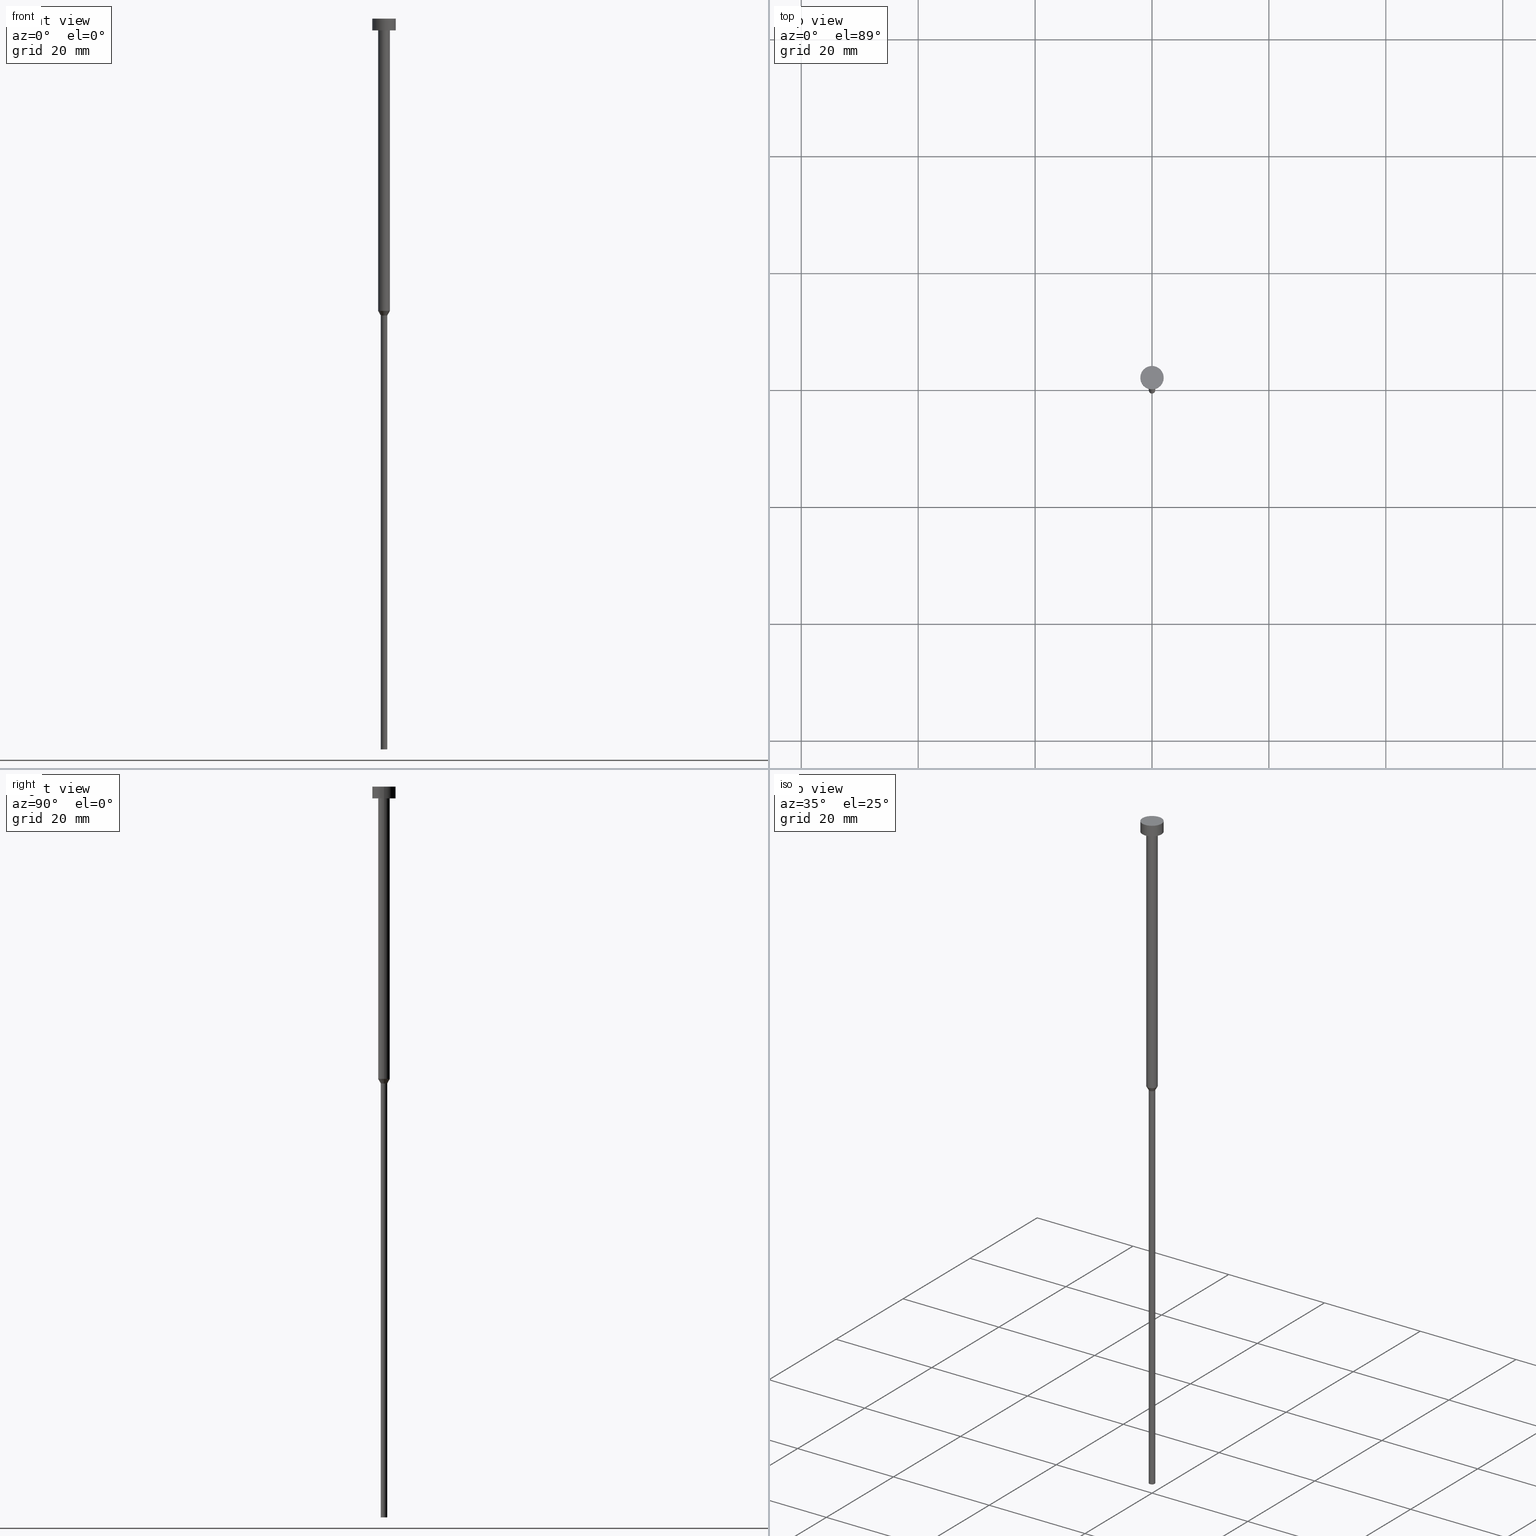
[diagram: canonical four-view strip — front | top / right | iso, engineering-drawing reading convention]
A machine part, canonical four-view strip (front | top / right | iso — engineering-drawing reading convention). The complete STEP part file that produces these views, byte-faithful:
ISO-10303-21;
HEADER;
FILE_DESCRIPTION (( 'STEP AP203' ),
    '1' );
FILE_NAME ('0143.STEP',
    '2023-02-13T11:52:59',
    ( '' ),
    ( '' ),
    'SwSTEP 2.0',
    'SolidWorks 2019',
    '' );
FILE_SCHEMA (( 'CONFIG_CONTROL_DESIGN' ));
ENDSEC;

DATA;
#1 = CC_DESIGN_PERSON_AND_ORGANIZATION_ASSIGNMENT ( #39, #232, ( #33 ) ) ;
#2 = ORIENTED_EDGE ( 'NONE', *, *, #259, .F. ) ;
#3 = LINE ( 'NONE', #186, #301 ) ;
#4 = FACE_OUTER_BOUND ( 'NONE', #128, .T. ) ;
#5 = ORIENTED_EDGE ( 'NONE', *, *, #282, .F. ) ;
#6 = DIRECTION ( 'NONE',  ( 1.000000000000000000, 0.000000000000000000, 0.000000000000000000 ) ) ;
#7 = AXIS2_PLACEMENT_3D ( 'NONE', #40, #133, #331 ) ;
#8 =( LENGTH_UNIT ( ) NAMED_UNIT ( * ) SI_UNIT ( .MILLI., .METRE. ) );
#9 = EDGE_CURVE ( 'NONE', #268, #194, #107, .T. ) ;
#10 = ORIENTED_EDGE ( 'NONE', *, *, #316, .T. ) ;
#11 = ORIENTED_EDGE ( 'NONE', *, *, #285, .F. ) ;
#12 = AXIS2_PLACEMENT_3D ( 'NONE', #298, #146, #276 ) ;
#13 = CARTESIAN_POINT ( 'NONE',  ( 0.000000000000000000, 0.000000000000000000, -125.0000000000000000 ) ) ;
#14 = DIRECTION ( 'NONE',  ( 1.000000000000000000, 0.000000000000000000, 0.000000000000000000 ) ) ;
#15 = DIRECTION ( 'NONE',  ( 1.000000000000000000, 0.000000000000000000, 0.000000000000000000 ) ) ;
#16 = ORIENTED_EDGE ( 'NONE', *, *, #126, .T. ) ;
#17 = DATE_AND_TIME ( #204, #152 ) ;
#18 = DIRECTION ( 'NONE',  ( -0.000000000000000000, -0.000000000000000000, 1.000000000000000000 ) ) ;
#19 = APPROVAL_STATUS ( 'not_yet_approved' ) ;
#20 = CYLINDRICAL_SURFACE ( 'NONE', #151, 1.000000000000003331 ) ;
#21 = PERSON_AND_ORGANIZATION_ROLE ( 'classification_officer' ) ;
#22 = DIRECTION ( 'NONE',  ( 1.000000000000000000, 0.000000000000000000, 0.000000000000000000 ) ) ;
#23 = VERTEX_POINT ( 'NONE', #314 ) ;
#24 = CARTESIAN_POINT ( 'NONE',  ( -2.000000000000000000, 2.449293598294706414E-16, 0.000000000000000000 ) ) ;
#25 = DIRECTION ( 'NONE',  ( 1.000000000000000000, 0.000000000000000000, 0.000000000000000000 ) ) ;
#26 = VERTEX_POINT ( 'NONE', #200 ) ;
#27 = CARTESIAN_POINT ( 'NONE',  ( 0.000000000000000000, 0.000000000000000000, 0.000000000000000000 ) ) ;
#28 = DIRECTION ( 'NONE',  ( -0.000000000000000000, -0.000000000000000000, 1.000000000000000000 ) ) ;
#29 = CONICAL_SURFACE ( 'NONE', #265, 1.000000000000003109, 0.5235987755983020353 ) ;
#30 = DIRECTION ( 'NONE',  ( -0.000000000000000000, -0.000000000000000000, 1.000000000000000000 ) ) ;
#31 = CIRCLE ( 'NONE', #171, 0.5500000000000000444 ) ;
#32 = DIRECTION ( 'NONE',  ( -0.000000000000000000, -0.000000000000000000, 1.000000000000000000 ) ) ;
#33 = PRODUCT_DEFINITION_FORMATION_WITH_SPECIFIED_SOURCE ( 'LIBOVOLN�', '', #131, .NOT_KNOWN. ) ;
#34 = ORIENTED_EDGE ( 'NONE', *, *, #335, .T. ) ;
#35 = CARTESIAN_POINT ( 'NONE',  ( 1.000000000000003109, 0.000000000000000000, -50.00000000000000000 ) ) ;
#36 = ORIENTED_EDGE ( 'NONE', *, *, #326, .F. ) ;
#37 = DIRECTION ( 'NONE',  ( -0.000000000000000000, -0.000000000000000000, 1.000000000000000000 ) ) ;
#38 = DATE_TIME_ROLE ( 'classification_date' ) ;
#39 = PERSON_AND_ORGANIZATION ( #61, #98 ) ;
#40 = CARTESIAN_POINT ( 'NONE',  ( 0.000000000000000000, 0.000000000000000000, -2.449293598294705921E-16 ) ) ;
#41 = CALENDAR_DATE ( 2023, 13, 2 ) ;
#42 = ADVANCED_FACE ( 'NONE', ( #160, #106 ), #46, .T. ) ;
#43 = AXIS2_PLACEMENT_3D ( 'NONE', #279, #32, #89 ) ;
#44 = COORDINATED_UNIVERSAL_TIME_OFFSET ( 1, 0, .AHEAD. ) ;
#45 = CARTESIAN_POINT ( 'NONE',  ( -0.5499999999999999334, 6.735557395310441284E-17, -125.0000000000000000 ) ) ;
#46 = PLANE ( 'NONE',  #70 ) ;
#47 = SECURITY_CLASSIFICATION_LEVEL ( 'unclassified' ) ;
#48 = ORIENTED_EDGE ( 'NONE', *, *, #9, .F. ) ;
#49 = DIRECTION ( 'NONE',  ( -1.000000000000000000, 0.000000000000000000, -0.000000000000000000 ) ) ;
#50 = CARTESIAN_POINT ( 'NONE',  ( 2.000000000000000000, 0.000000000000000000, 0.000000000000000000 ) ) ;
#51 = CARTESIAN_POINT ( 'NONE',  ( 0.5499999999999999334, 0.000000000000000000, 0.000000000000000000 ) ) ;
#52 = CARTESIAN_POINT ( 'NONE',  ( 0.000000000000000000, 0.000000000000000000, -50.77942286340599765 ) ) ;
#53 = EDGE_CURVE ( 'NONE', #57, #23, #163, .T. ) ;
#54 = ADVANCED_FACE ( 'NONE', ( #4 ), #111, .T. ) ;
#55 = AXIS2_PLACEMENT_3D ( 'NONE', #27, #244, #218 ) ;
#56 = FACE_OUTER_BOUND ( 'NONE', #223, .T. ) ;
#57 = VERTEX_POINT ( 'NONE', #193 ) ;
#58 = DIRECTION ( 'NONE',  ( 1.000000000000000000, 0.000000000000000000, 0.000000000000000000 ) ) ;
#59 = LINE ( 'NONE', #35, #112 ) ;
#60 = CC_DESIGN_SECURITY_CLASSIFICATION ( #92, ( #33 ) ) ;
#61 = PERSON ( 'NEUR�EN�', 'NEUR�EN�', 'NEUR�EN�', ('NEUR�EN�'), ('NEUR�EN�'), ('NEUR�EN�') ) ;
#62 = FACE_OUTER_BOUND ( 'NONE', #337, .T. ) ;
#63 = ORIENTED_EDGE ( 'NONE', *, *, #201, .T. ) ;
#64 = PRODUCT_DEFINITION ( 'NEZN�M�', '', #33, #269 ) ;
#65 = ORIENTED_EDGE ( 'NONE', *, *, #137, .T. ) ;
#66 =( NAMED_UNIT ( * ) PLANE_ANGLE_UNIT ( ) SI_UNIT ( $, .RADIAN. ) );
#67 = AXIS2_PLACEMENT_3D ( 'NONE', #188, #327, #302 ) ;
#68 = DATE_AND_TIME ( #317, #296 ) ;
#69 = DIRECTION ( 'NONE',  ( 0.5000000000000027756, 0.000000000000000000, 0.8660254037844370423 ) ) ;
#70 = AXIS2_PLACEMENT_3D ( 'NONE', #105, #207, #321 ) ;
#71 = PRODUCT_DEFINITION_SHAPE ( 'NONE', 'NONE',  #64 ) ;
#72 = DIRECTION ( 'NONE',  ( -0.000000000000000000, -0.000000000000000000, 1.000000000000000000 ) ) ;
#73 = APPROVAL_PERSON_ORGANIZATION ( #175, #134, #183 ) ;
#74 = EDGE_LOOP ( 'NONE', ( #184, #109, #147, #5 ) ) ;
#75 = PERSON_AND_ORGANIZATION ( #61, #98 ) ;
#76 = ORIENTED_EDGE ( 'NONE', *, *, #282, .T. ) ;
#77 = EDGE_CURVE ( 'NONE', #23, #78, #280, .T. ) ;
#78 = VERTEX_POINT ( 'NONE', #281 ) ;
#79 = DIRECTION ( 'NONE',  ( 1.000000000000000000, 0.000000000000000000, 0.000000000000000000 ) ) ;
#80 = CIRCLE ( 'NONE', #12, 2.000000000000000000 ) ;
#81 = APPROVAL ( #19, 'NEUR�EN�' ) ;
#82 = CARTESIAN_POINT ( 'NONE',  ( 2.000000000000000000, 0.000000000000000000, -2.000000000000000444 ) ) ;
#83 = DIRECTION ( 'NONE',  ( -0.000000000000000000, -0.000000000000000000, 1.000000000000000000 ) ) ;
#84 = ORIENTED_EDGE ( 'NONE', *, *, #77, .F. ) ;
#85 = DIRECTION ( 'NONE',  ( -0.000000000000000000, -0.000000000000000000, 1.000000000000000000 ) ) ;
#86 = DIRECTION ( 'NONE',  ( 1.000000000000000000, 0.000000000000000000, 0.000000000000000000 ) ) ;
#87 = CC_DESIGN_PERSON_AND_ORGANIZATION_ASSIGNMENT ( #346, #21, ( #92 ) ) ;
#88 = ORIENTED_EDGE ( 'NONE', *, *, #235, .F. ) ;
#89 = DIRECTION ( 'NONE',  ( 1.000000000000000000, 0.000000000000000000, 0.000000000000000000 ) ) ;
#90 = DIRECTION ( 'NONE',  ( 1.000000000000000000, 0.000000000000000000, 0.000000000000000000 ) ) ;
#91 = ORIENTED_EDGE ( 'NONE', *, *, #300, .F. ) ;
#92 = SECURITY_CLASSIFICATION ( '', '', #47 ) ;
#93 = ORIENTED_EDGE ( 'NONE', *, *, #300, .T. ) ;
#94 = EDGE_LOOP ( 'NONE', ( #16, #65, #350, #248 ) ) ;
#95 = DIRECTION ( 'NONE',  ( -0.000000000000000000, -0.000000000000000000, 1.000000000000000000 ) ) ;
#96 = CC_DESIGN_DATE_AND_TIME_ASSIGNMENT ( #68, #233, ( #64 ) ) ;
#97 = ORIENTED_EDGE ( 'NONE', *, *, #266, .T. ) ;
#98 = ORGANIZATION ( 'NEUR�EN�', 'NEUR�EN�', '' ) ;
#99 = CARTESIAN_POINT ( 'NONE',  ( 0.000000000000000000, 0.000000000000000000, 0.000000000000000000 ) ) ;
#100 = PERSON_AND_ORGANIZATION ( #61, #98 ) ;
#101 = CYLINDRICAL_SURFACE ( 'NONE', #305, 2.000000000000000000 ) ;
#102 = EDGE_CURVE ( 'NONE', #333, #227, #59, .T. ) ;
#103 = PERSON_AND_ORGANIZATION ( #61, #98 ) ;
#104 = COORDINATED_UNIVERSAL_TIME_OFFSET ( 1, 0, .AHEAD. ) ;
#105 = CARTESIAN_POINT ( 'NONE',  ( 0.000000000000000000, -2.000000000000000000, -2.000000000000000444 ) ) ;
#106 = FACE_OUTER_BOUND ( 'NONE', #117, .T. ) ;
#107 = CIRCLE ( 'NONE', #271, 0.5499999999999999334 ) ;
#108 = CARTESIAN_POINT ( 'NONE',  ( 0.000000000000000000, 0.000000000000000000, 0.000000000000000000 ) ) ;
#109 = ORIENTED_EDGE ( 'NONE', *, *, #235, .T. ) ;
#110 = DIRECTION ( 'NONE',  ( -0.000000000000000000, -0.000000000000000000, 1.000000000000000000 ) ) ;
#111 = PLANE ( 'NONE',  #234 ) ;
#112 = VECTOR ( 'NONE', #69, 1000.000000000000000 ) ;
#113 = CARTESIAN_POINT ( 'NONE',  ( 0.000000000000000000, 0.000000000000000000, -50.00000000000000000 ) ) ;
#114 = ORIENTED_EDGE ( 'NONE', *, *, #126, .F. ) ;
#115 = CYLINDRICAL_SURFACE ( 'NONE', #55, 1.000000000000003331 ) ;
#116 = AXIS2_PLACEMENT_3D ( 'NONE', #297, #85, #25 ) ;
#117 = EDGE_LOOP ( 'NONE', ( #36, #123 ) ) ;
#118 = MANIFOLD_SOLID_BREP ( 'Rotovat1', #143 ) ;
#119 = PERSON_AND_ORGANIZATION_ROLE ( 'design_owner' ) ;
#120 = CARTESIAN_POINT ( 'NONE',  ( -1.000000000000003109, 1.224646799147356905E-16, -50.00000000000000000 ) ) ;
#121 =( NAMED_UNIT ( * ) SI_UNIT ( $, .STERADIAN. ) SOLID_ANGLE_UNIT ( ) );
#122 = APPLICATION_CONTEXT ( 'configuration controlled 3d designs of mechanical parts and assemblies' ) ;
#123 = ORIENTED_EDGE ( 'NONE', *, *, #320, .F. ) ;
#124 = ORIENTED_EDGE ( 'NONE', *, *, #53, .T. ) ;
#125 = CC_DESIGN_APPROVAL ( #179, ( #92 ) ) ;
#126 = EDGE_CURVE ( 'NONE', #333, #245, #31, .T. ) ;
#127 = DIRECTION ( 'NONE',  ( -0.000000000000000000, -0.000000000000000000, 1.000000000000000000 ) ) ;
#128 = EDGE_LOOP ( 'NONE', ( #63, #240 ) ) ;
#129 = DATE_AND_TIME ( #41, #231 ) ;
#130 = FACE_OUTER_BOUND ( 'NONE', #172, .T. ) ;
#131 = PRODUCT ( '0143', '0143', '', ( #173 ) ) ;
#132 = APPROVAL_PERSON_ORGANIZATION ( #286, #179, #158 ) ;
#133 = DIRECTION ( 'NONE',  ( -0.000000000000000000, -0.000000000000000000, 1.000000000000000000 ) ) ;
#134 = APPROVAL ( #343, 'NEUR�EN�' ) ;
#135 = ORIENTED_EDGE ( 'NONE', *, *, #137, .F. ) ;
#136 = UNCERTAINTY_MEASURE_WITH_UNIT (LENGTH_MEASURE( 1.000000000000000082E-05 ), #8, 'distance_accuracy_value', 'NONE');
#137 = EDGE_CURVE ( 'NONE', #245, #252, #225, .T. ) ;
#138 = AXIS2_PLACEMENT_3D ( 'NONE', #275, #141, #148 ) ;
#139 = PLANE ( 'NONE',  #257 ) ;
#140 = DIRECTION ( 'NONE',  ( -0.000000000000000000, -0.000000000000000000, 1.000000000000000000 ) ) ;
#141 = DIRECTION ( 'NONE',  ( -0.000000000000000000, -0.000000000000000000, 1.000000000000000000 ) ) ;
#142 = ORIENTED_EDGE ( 'NONE', *, *, #259, .T. ) ;
#143 = CLOSED_SHELL ( 'NONE', ( #177, #181, #195, #324, #162, #217, #287, #307, #42, #145, #54 ) ) ;
#144 = FACE_OUTER_BOUND ( 'NONE', #352, .T. ) ;
#145 = ADVANCED_FACE ( 'NONE', ( #341 ), #310, .T. ) ;
#146 = DIRECTION ( 'NONE',  ( -0.000000000000000000, -0.000000000000000000, 1.000000000000000000 ) ) ;
#147 = ORIENTED_EDGE ( 'NONE', *, *, #154, .F. ) ;
#148 = DIRECTION ( 'NONE',  ( 1.000000000000000000, 0.000000000000000000, 0.000000000000000000 ) ) ;
#149 = CARTESIAN_POINT ( 'NONE',  ( 1.000000000000003331, 0.000000000000000000, 0.000000000000000000 ) ) ;
#150 = CARTESIAN_POINT ( 'NONE',  ( 0.5500000000000000444, 0.000000000000000000, -50.77942286340599765 ) ) ;
#151 = AXIS2_PLACEMENT_3D ( 'NONE', #99, #72, #291 ) ;
#152 = LOCAL_TIME ( 12, 52, 59.00000000000000000, #44 ) ;
#153 = CARTESIAN_POINT ( 'NONE',  ( 0.000000000000000000, 0.000000000000000000, -125.0000000000000000 ) ) ;
#154 = EDGE_CURVE ( 'NONE', #26, #336, #161, .T. ) ;
#155 = ORIENTED_EDGE ( 'NONE', *, *, #102, .T. ) ;
#156 = CC_DESIGN_APPROVAL ( #81, ( #64 ) ) ;
#157 = DIRECTION ( 'NONE',  ( 1.000000000000000000, 0.000000000000000000, 0.000000000000000000 ) ) ;
#158 = APPROVAL_ROLE ( '' ) ;
#159 = APPROVAL_DATE_TIME ( #260, #179 ) ;
#160 = FACE_BOUND ( 'NONE', #209, .T. ) ;
#161 = CIRCLE ( 'NONE', #339, 1.000000000000003553 ) ;
#162 = ADVANCED_FACE ( 'NONE', ( #62 ), #139, .T. ) ;
#163 = LINE ( 'NONE', #24, #348 ) ;
#164 = AXIS2_PLACEMENT_3D ( 'NONE', #355, #110, #192 ) ;
#165 = CYLINDRICAL_SURFACE ( 'NONE', #345, 0.5499999999999999334 ) ;
#166 = CARTESIAN_POINT ( 'NONE',  ( -1.000000000000003109, 1.224646799147356905E-16, -50.00000000000000000 ) ) ;
#167 = CIRCLE ( 'NONE', #67, 1.000000000000003109 ) ;
#168 = CC_DESIGN_PERSON_AND_ORGANIZATION_ASSIGNMENT ( #75, #351, ( #64 ) ) ;
#169 = CYLINDRICAL_SURFACE ( 'NONE', #138, 0.5499999999999999334 ) ;
#170 = VECTOR ( 'NONE', #30, 1000.000000000000000 ) ;
#171 = AXIS2_PLACEMENT_3D ( 'NONE', #338, #199, #15 ) ;
#172 = EDGE_LOOP ( 'NONE', ( #306, #124, #202, #91 ) ) ;
#173 = MECHANICAL_CONTEXT ( 'NONE', #274, 'mechanical' ) ;
#174 = AXIS2_PLACEMENT_3D ( 'NONE', #52, #28, #6 ) ;
#175 = PERSON_AND_ORGANIZATION ( #61, #98 ) ;
#176 = DIRECTION ( 'NONE',  ( -0.000000000000000000, -0.000000000000000000, 1.000000000000000000 ) ) ;
#177 = ADVANCED_FACE ( 'NONE', ( #130 ), #101, .T. ) ;
#178 = APPROVAL_STATUS ( 'not_yet_approved' ) ;
#179 = APPROVAL ( #178, 'NEUR�EN�' ) ;
#180 = CIRCLE ( 'NONE', #174, 0.5500000000000000444 ) ;
#181 = ADVANCED_FACE ( 'NONE', ( #229 ), #20, .T. ) ;
#182 = EDGE_LOOP ( 'NONE', ( #342, #322, #93, #84 ) ) ;
#183 = APPROVAL_ROLE ( '' ) ;
#184 = ORIENTED_EDGE ( 'NONE', *, *, #349, .T. ) ;
#185 = CIRCLE ( 'NONE', #253, 0.5499999999999999334 ) ;
#186 = CARTESIAN_POINT ( 'NONE',  ( -0.5499999999999999334, 6.735557395310441284E-17, 0.000000000000000000 ) ) ;
#187 = LINE ( 'NONE', #50, #222 ) ;
#188 = CARTESIAN_POINT ( 'NONE',  ( 0.000000000000000000, 0.000000000000000000, -50.00000000000000000 ) ) ;
#189 = CARTESIAN_POINT ( 'NONE',  ( -0.5500000000000000444, 6.735557395310442516E-17, -50.77942286340599765 ) ) ;
#190 = VECTOR ( 'NONE', #249, 1000.000000000000000 ) ;
#191 = ORIENTED_EDGE ( 'NONE', *, *, #266, .F. ) ;
#192 = DIRECTION ( 'NONE',  ( 1.000000000000000000, 0.000000000000000000, 0.000000000000000000 ) ) ;
#193 = CARTESIAN_POINT ( 'NONE',  ( -2.000000000000000000, 2.449293598294706414E-16, -2.000000000000000444 ) ) ;
#194 = VERTEX_POINT ( 'NONE', #45 ) ;
#195 = ADVANCED_FACE ( 'NONE', ( #288 ), #230, .T. ) ;
#196 = CIRCLE ( 'NONE', #116, 1.000000000000003553 ) ;
#197 = ORIENTED_EDGE ( 'NONE', *, *, #226, .T. ) ;
#198 = CARTESIAN_POINT ( 'NONE',  ( -1.000000000000003553, 1.224646799147357398E-16, -2.000000000000000444 ) ) ;
#199 = DIRECTION ( 'NONE',  ( -0.000000000000000000, -0.000000000000000000, 1.000000000000000000 ) ) ;
#200 = CARTESIAN_POINT ( 'NONE',  ( 1.000000000000003553, 0.000000000000000000, -2.000000000000000444 ) ) ;
#201 = EDGE_CURVE ( 'NONE', #78, #23, #344, .T. ) ;
#202 = ORIENTED_EDGE ( 'NONE', *, *, #201, .F. ) ;
#203 = DATE_AND_TIME ( #289, #243 ) ;
#204 = CALENDAR_DATE ( 2023, 13, 2 ) ;
#205 = DIRECTION ( 'NONE',  ( 1.000000000000000000, 0.000000000000000000, 0.000000000000000000 ) ) ;
#206 = AXIS2_PLACEMENT_3D ( 'NONE', #263, #315, #22 ) ;
#207 = DIRECTION ( 'NONE',  ( 0.000000000000000000, 0.000000000000000000, -1.000000000000000000 ) ) ;
#208 = COORDINATED_UNIVERSAL_TIME_OFFSET ( 1, 0, .AHEAD. ) ;
#209 = EDGE_LOOP ( 'NONE', ( #283, #97 ) ) ;
#210 = DIRECTION ( 'NONE',  ( -0.000000000000000000, -0.000000000000000000, 1.000000000000000000 ) ) ;
#211 = CARTESIAN_POINT ( 'NONE',  ( 0.000000000000000000, 0.000000000000000000, -1.224646799147352961E-16 ) ) ;
#212 = AXIS2_PLACEMENT_3D ( 'NONE', #309, #251, #58 ) ;
#213 = DIRECTION ( 'NONE',  ( -0.000000000000000000, -0.000000000000000000, 1.000000000000000000 ) ) ;
#214 = CARTESIAN_POINT ( 'NONE',  ( 0.000000000000000000, 0.000000000000000000, -2.449293598294705921E-16 ) ) ;
#215 = AXIS2_PLACEMENT_3D ( 'NONE', #214, #127, #221 ) ;
#216 = DIRECTION ( 'NONE',  ( 1.000000000000000000, 0.000000000000000000, 0.000000000000000000 ) ) ;
#217 = ADVANCED_FACE ( 'NONE', ( #329 ), #169, .T. ) ;
#218 = DIRECTION ( 'NONE',  ( 1.000000000000000000, 0.000000000000000000, 0.000000000000000000 ) ) ;
#219 = APPLICATION_PROTOCOL_DEFINITION ( 'international standard', 'config_control_design', 1994, #122 ) ;
#220 = APPLICATION_PROTOCOL_DEFINITION ( 'international standard', 'config_control_design', 1994, #274 ) ;
#221 = DIRECTION ( 'NONE',  ( 1.000000000000000000, 0.000000000000000000, 0.000000000000000000 ) ) ;
#222 = VECTOR ( 'NONE', #83, 1000.000000000000000 ) ;
#223 = EDGE_LOOP ( 'NONE', ( #88, #197, #76, #191 ) ) ;
#224 = PRODUCT_RELATED_PRODUCT_CATEGORY ( 'detail', '', ( #131 ) ) ;
#225 = LINE ( 'NONE', #120, #308 ) ;
#226 = EDGE_CURVE ( 'NONE', #252, #227, #167, .T. ) ;
#227 = VERTEX_POINT ( 'NONE', #299 ) ;
#228 = SHAPE_DEFINITION_REPRESENTATION ( #71, #332 ) ;
#229 = FACE_OUTER_BOUND ( 'NONE', #74, .T. ) ;
#230 = CONICAL_SURFACE ( 'NONE', #206, 1.000000000000003109, 0.5235987755983020353 ) ;
#231 = LOCAL_TIME ( 12, 52, 59.00000000000000000, #104 ) ;
#232 = PERSON_AND_ORGANIZATION_ROLE ( 'creator' ) ;
#233 = DATE_TIME_ROLE ( 'creation_date' ) ;
#234 = AXIS2_PLACEMENT_3D ( 'NONE', #211, #247, #86 ) ;
#235 = EDGE_CURVE ( 'NONE', #252, #336, #246, .T. ) ;
#236 = CIRCLE ( 'NONE', #164, 2.000000000000000000 ) ;
#237 = COORDINATED_UNIVERSAL_TIME_OFFSET ( 1, 0, .AHEAD. ) ;
#238 = CARTESIAN_POINT ( 'NONE',  ( 0.000000000000000000, 0.000000000000000000, -125.0000000000000000 ) ) ;
#239 = DIRECTION ( 'NONE',  ( -0.000000000000000000, -0.000000000000000000, 1.000000000000000000 ) ) ;
#240 = ORIENTED_EDGE ( 'NONE', *, *, #77, .T. ) ;
#241 = DIRECTION ( 'NONE',  ( -0.000000000000000000, -0.000000000000000000, 1.000000000000000000 ) ) ;
#242 = CC_DESIGN_PERSON_AND_ORGANIZATION_ASSIGNMENT ( #103, #318, ( #33 ) ) ;
#243 = LOCAL_TIME ( 12, 52, 59.00000000000000000, #237 ) ;
#244 = DIRECTION ( 'NONE',  ( -0.000000000000000000, -0.000000000000000000, 1.000000000000000000 ) ) ;
#245 = VERTEX_POINT ( 'NONE', #189 ) ;
#246 = LINE ( 'NONE', #323, #170 ) ;
#247 = DIRECTION ( 'NONE',  ( 0.000000000000000000, -0.000000000000000000, 1.000000000000000000 ) ) ;
#248 = ORIENTED_EDGE ( 'NONE', *, *, #102, .F. ) ;
#249 = DIRECTION ( 'NONE',  ( -0.000000000000000000, -0.000000000000000000, 1.000000000000000000 ) ) ;
#250 = VECTOR ( 'NONE', #239, 1000.000000000000000 ) ;
#251 = DIRECTION ( 'NONE',  ( 0.000000000000000000, 0.000000000000000000, 1.000000000000000000 ) ) ;
#252 = VERTEX_POINT ( 'NONE', #166 ) ;
#253 = AXIS2_PLACEMENT_3D ( 'NONE', #153, #311, #14 ) ;
#254 = ORIENTED_EDGE ( 'NONE', *, *, #335, .F. ) ;
#255 = CARTESIAN_POINT ( 'NONE',  ( 0.000000000000000000, 0.000000000000000000, 0.000000000000000000 ) ) ;
#256 = COORDINATED_UNIVERSAL_TIME_OFFSET ( 1, 0, .AHEAD. ) ;
#257 = AXIS2_PLACEMENT_3D ( 'NONE', #238, #261, #49 ) ;
#258 = APPROVAL_DATE_TIME ( #203, #81 ) ;
#259 = EDGE_CURVE ( 'NONE', #194, #245, #3, .T. ) ;
#260 = DATE_AND_TIME ( #290, #325 ) ;
#261 = DIRECTION ( 'NONE',  ( 0.000000000000000000, 0.000000000000000000, -1.000000000000000000 ) ) ;
#262 = APPROVAL_ROLE ( '' ) ;
#263 = CARTESIAN_POINT ( 'NONE',  ( 0.000000000000000000, 0.000000000000000000, -50.00000000000000000 ) ) ;
#264 = VERTEX_POINT ( 'NONE', #82 ) ;
#265 = AXIS2_PLACEMENT_3D ( 'NONE', #113, #241, #216 ) ;
#266 = EDGE_CURVE ( 'NONE', #336, #26, #196, .T. ) ;
#267 = CARTESIAN_POINT ( 'NONE',  ( 0.5499999999999999334, 0.000000000000000000, -125.0000000000000000 ) ) ;
#268 = VERTEX_POINT ( 'NONE', #267 ) ;
#269 = DESIGN_CONTEXT ( 'detailed design', #122, 'design' ) ;
#270 = LINE ( 'NONE', #149, #190 ) ;
#271 = AXIS2_PLACEMENT_3D ( 'NONE', #13, #37, #157 ) ;
#272 = CC_DESIGN_APPROVAL ( #134, ( #33 ) ) ;
#273 = ORIENTED_EDGE ( 'NONE', *, *, #316, .F. ) ;
#274 = APPLICATION_CONTEXT ( 'configuration controlled 3d designs of mechanical parts and assemblies' ) ;
#275 = CARTESIAN_POINT ( 'NONE',  ( 0.000000000000000000, 0.000000000000000000, 0.000000000000000000 ) ) ;
#276 = DIRECTION ( 'NONE',  ( 1.000000000000000000, 0.000000000000000000, 0.000000000000000000 ) ) ;
#277 = APPROVAL_PERSON_ORGANIZATION ( #100, #81, #262 ) ;
#278 = DIRECTION ( 'NONE',  ( 1.000000000000000000, 0.000000000000000000, 0.000000000000000000 ) ) ;
#279 = CARTESIAN_POINT ( 'NONE',  ( 0.000000000000000000, 0.000000000000000000, -50.00000000000000000 ) ) ;
#280 = CIRCLE ( 'NONE', #215, 2.000000000000000000 ) ;
#281 = CARTESIAN_POINT ( 'NONE',  ( 2.000000000000000000, 0.000000000000000000, -2.449293598294705921E-16 ) ) ;
#282 = EDGE_CURVE ( 'NONE', #227, #26, #270, .T. ) ;
#283 = ORIENTED_EDGE ( 'NONE', *, *, #154, .T. ) ;
#284 = EDGE_LOOP ( 'NONE', ( #2, #34, #10, #11 ) ) ;
#285 = EDGE_CURVE ( 'NONE', #245, #333, #180, .T. ) ;
#286 = PERSON_AND_ORGANIZATION ( #61, #98 ) ;
#287 = ADVANCED_FACE ( 'NONE', ( #144 ), #29, .T. ) ;
#288 = FACE_OUTER_BOUND ( 'NONE', #94, .T. ) ;
#289 = CALENDAR_DATE ( 2023, 13, 2 ) ;
#290 = CALENDAR_DATE ( 2023, 13, 2 ) ;
#291 = DIRECTION ( 'NONE',  ( 1.000000000000000000, 0.000000000000000000, 0.000000000000000000 ) ) ;
#292 = CC_DESIGN_DATE_AND_TIME_ASSIGNMENT ( #129, #38, ( #92 ) ) ;
#293 = EDGE_LOOP ( 'NONE', ( #304, #142, #114, #273 ) ) ;
#294 = AXIS2_PLACEMENT_3D ( 'NONE', #255, #95, #90 ) ;
#295 = ORIENTED_EDGE ( 'NONE', *, *, #226, .F. ) ;
#296 = LOCAL_TIME ( 12, 52, 59.00000000000000000, #208 ) ;
#297 = CARTESIAN_POINT ( 'NONE',  ( 0.000000000000000000, 0.000000000000000000, -2.000000000000000444 ) ) ;
#298 = CARTESIAN_POINT ( 'NONE',  ( 0.000000000000000000, 0.000000000000000000, -2.000000000000000444 ) ) ;
#299 = CARTESIAN_POINT ( 'NONE',  ( 1.000000000000003109, 0.000000000000000000, -50.00000000000000000 ) ) ;
#300 = EDGE_CURVE ( 'NONE', #264, #78, #187, .T. ) ;
#301 = VECTOR ( 'NONE', #213, 1000.000000000000000 ) ;
#302 = DIRECTION ( 'NONE',  ( 1.000000000000000000, 0.000000000000000000, 0.000000000000000000 ) ) ;
#303 = FACE_OUTER_BOUND ( 'NONE', #293, .T. ) ;
#304 = ORIENTED_EDGE ( 'NONE', *, *, #9, .T. ) ;
#305 = AXIS2_PLACEMENT_3D ( 'NONE', #319, #18, #205 ) ;
#306 = ORIENTED_EDGE ( 'NONE', *, *, #326, .T. ) ;
#307 = ADVANCED_FACE ( 'NONE', ( #56 ), #115, .T. ) ;
#308 = VECTOR ( 'NONE', #334, 1000.000000000000000 ) ;
#309 = CARTESIAN_POINT ( 'NONE',  ( 0.000000000000000000, 0.000000000000000000, 0.000000000000000000 ) ) ;
#310 = CYLINDRICAL_SURFACE ( 'NONE', #294, 2.000000000000000000 ) ;
#311 = DIRECTION ( 'NONE',  ( -0.000000000000000000, -0.000000000000000000, 1.000000000000000000 ) ) ;
#312 = CARTESIAN_POINT ( 'NONE',  ( 0.000000000000000000, 0.000000000000000000, -2.000000000000000444 ) ) ;
#313 = CIRCLE ( 'NONE', #43, 1.000000000000003109 ) ;
#314 = CARTESIAN_POINT ( 'NONE',  ( -2.000000000000000000, 2.449293598294706414E-16, -2.449293598294705921E-16 ) ) ;
#315 = DIRECTION ( 'NONE',  ( -0.000000000000000000, -0.000000000000000000, 1.000000000000000000 ) ) ;
#316 = EDGE_CURVE ( 'NONE', #268, #333, #353, .T. ) ;
#317 = CALENDAR_DATE ( 2023, 13, 2 ) ;
#318 = PERSON_AND_ORGANIZATION_ROLE ( 'design_supplier' ) ;
#319 = CARTESIAN_POINT ( 'NONE',  ( 0.000000000000000000, 0.000000000000000000, 0.000000000000000000 ) ) ;
#320 = EDGE_CURVE ( 'NONE', #57, #264, #236, .T. ) ;
#321 = DIRECTION ( 'NONE',  ( -1.000000000000000000, 0.000000000000000000, -0.000000000000000000 ) ) ;
#322 = ORIENTED_EDGE ( 'NONE', *, *, #320, .T. ) ;
#323 = CARTESIAN_POINT ( 'NONE',  ( -1.000000000000003331, 1.224646799147357151E-16, 0.000000000000000000 ) ) ;
#324 = ADVANCED_FACE ( 'NONE', ( #303 ), #165, .T. ) ;
#325 = LOCAL_TIME ( 12, 52, 59.00000000000000000, #256 ) ;
#326 = EDGE_CURVE ( 'NONE', #264, #57, #80, .T. ) ;
#327 = DIRECTION ( 'NONE',  ( -0.000000000000000000, -0.000000000000000000, 1.000000000000000000 ) ) ;
#328 = CC_DESIGN_PERSON_AND_ORGANIZATION_ASSIGNMENT ( #340, #119, ( #131 ) ) ;
#329 = FACE_OUTER_BOUND ( 'NONE', #284, .T. ) ;
#330 =( GEOMETRIC_REPRESENTATION_CONTEXT ( 3 ) GLOBAL_UNCERTAINTY_ASSIGNED_CONTEXT ( ( #136 ) ) GLOBAL_UNIT_ASSIGNED_CONTEXT ( ( #8, #66, #121 ) ) REPRESENTATION_CONTEXT ( 'NONE', 'WORKASPACE' ) );
#331 = DIRECTION ( 'NONE',  ( 1.000000000000000000, 0.000000000000000000, 0.000000000000000000 ) ) ;
#332 = ADVANCED_BREP_SHAPE_REPRESENTATION ( '0143', ( #118, #212 ), #330 ) ;
#333 = VERTEX_POINT ( 'NONE', #150 ) ;
#334 = DIRECTION ( 'NONE',  ( -0.5000000000000027756, 6.123233995736800549E-17, 0.8660254037844370423 ) ) ;
#335 = EDGE_CURVE ( 'NONE', #194, #268, #185, .T. ) ;
#336 = VERTEX_POINT ( 'NONE', #198 ) ;
#337 = EDGE_LOOP ( 'NONE', ( #48, #254 ) ) ;
#338 = CARTESIAN_POINT ( 'NONE',  ( 0.000000000000000000, 0.000000000000000000, -50.77942286340599765 ) ) ;
#339 = AXIS2_PLACEMENT_3D ( 'NONE', #312, #176, #278 ) ;
#340 = PERSON_AND_ORGANIZATION ( #61, #98 ) ;
#341 = FACE_OUTER_BOUND ( 'NONE', #182, .T. ) ;
#342 = ORIENTED_EDGE ( 'NONE', *, *, #53, .F. ) ;
#343 = APPROVAL_STATUS ( 'not_yet_approved' ) ;
#344 = CIRCLE ( 'NONE', #7, 2.000000000000000000 ) ;
#345 = AXIS2_PLACEMENT_3D ( 'NONE', #108, #210, #79 ) ;
#346 = PERSON_AND_ORGANIZATION ( #61, #98 ) ;
#347 = APPROVAL_DATE_TIME ( #17, #134 ) ;
#348 = VECTOR ( 'NONE', #140, 1000.000000000000000 ) ;
#349 = EDGE_CURVE ( 'NONE', #227, #252, #313, .T. ) ;
#350 = ORIENTED_EDGE ( 'NONE', *, *, #349, .F. ) ;
#351 = PERSON_AND_ORGANIZATION_ROLE ( 'creator' ) ;
#352 = EDGE_LOOP ( 'NONE', ( #135, #354, #155, #295 ) ) ;
#353 = LINE ( 'NONE', #51, #250 ) ;
#354 = ORIENTED_EDGE ( 'NONE', *, *, #285, .T. ) ;
#355 = CARTESIAN_POINT ( 'NONE',  ( 0.000000000000000000, 0.000000000000000000, -2.000000000000000444 ) ) ;
ENDSEC;
END-ISO-10303-21;
